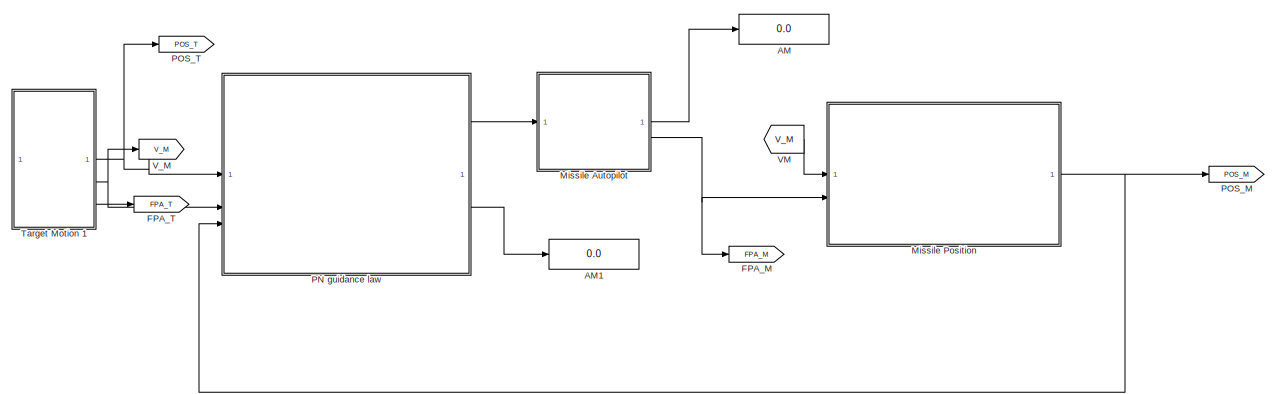
[diagram: root canvas - part 1/2, full width, top band]
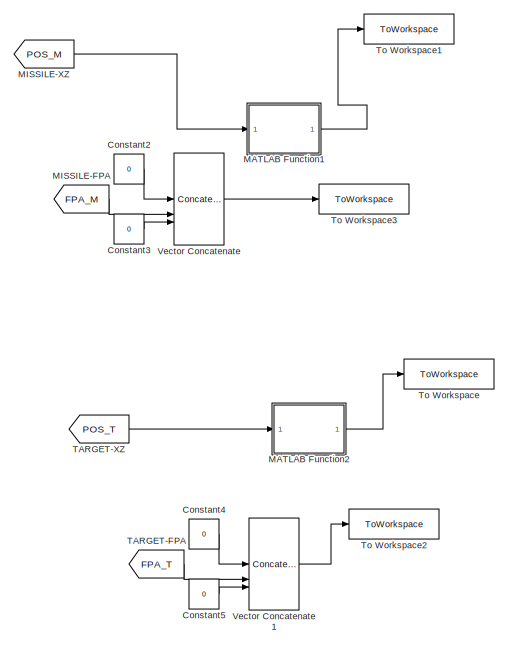
[diagram: root canvas - part 2/2, bottom center region]
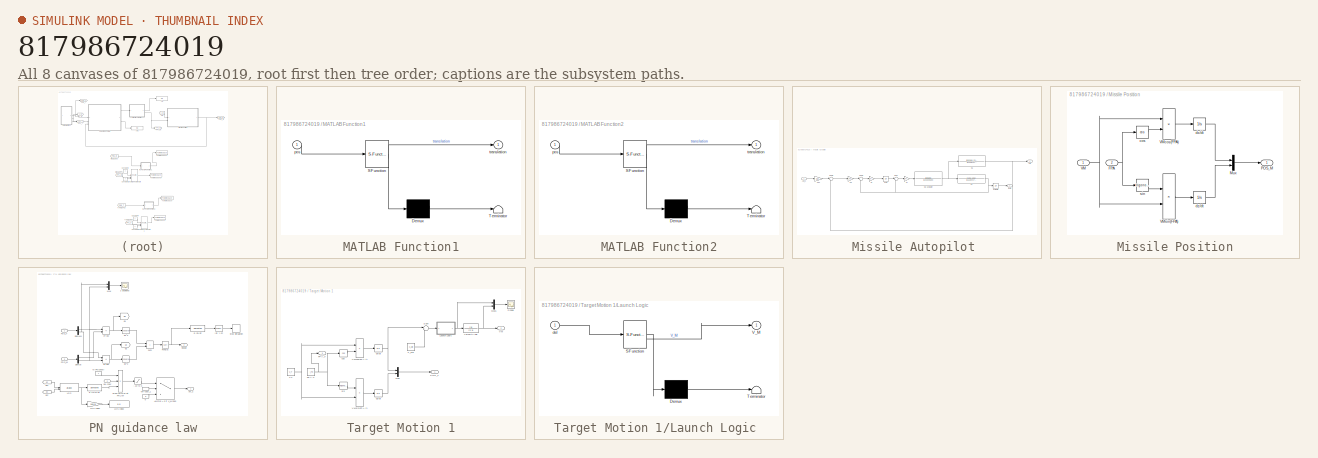
[diagram: thumbnail index - all 8 canvases of the model, root first then tree order]
MODEL slx_817986724019
KIND model
CONFIG AbsTol = auto
CONFIG EnableMultiTasking = off
CONFIG FixedStep = 0.01
CONFIG MaxStep = auto
CONFIG MinStep = auto
CONFIG PreLoadFcn = [aircraft, state] = astDehavillandBeaver();\nthrustX = getCoefficient(aircraft,"CX","Propeller",Component="Propeller");
CONFIG RelTol = 1e-5
CONFIG SampleTimeConstraint = Unconstrained
CONFIG SolverName = ode4
CONFIG StartTime = 0.0
CONFIG StopTime = 40
WORKSPACE source: MATLAB code (in-file) + mxarray member
WORKSPACE code: initialize6DOFSkyHogg;
WORKSPACE inputs0: object (value not decoded)
WORKSPACE states: object (value not decoded)
WORKSPACE states0: object (value not decoded)
BLOCK [Display] AM
  Decimation = 1
  Format = bank
BLOCK [Display] AM1
  Decimation = 1
  Format = bank
BLOCK [Constant] Constant2
  Value = 0
BLOCK [Constant] Constant3
  Value = 0
BLOCK [Constant] Constant4
  Value = 0
BLOCK [Constant] Constant5
  Value = 0
BLOCK [Goto] FPA_M
  GotoTag = FPA_M
BLOCK [Goto] FPA_T
  GotoTag = FPA_T
BLOCK [SubSystem] MATLAB Function1
  ErrorFcn = Stateflow.Translate.translate
  PermitHierarchicalResolution = ExplicitOnly
  SFBlockType = MATLAB Function
  TreatAsAtomicUnit = on
BLOCK [Demux] MATLAB Function1/ Demux 
  Outputs = 1
BLOCK [S-Function] MATLAB Function1/ SFunction 
  EnableBusSupport = off
  FunctionName = sf_sfun
  PortCounts = [1 2]
  SFcnIsStateOwnerBlock = off
  SFunctionDeploymentMode = off
  Tag = Stateflow S-Function 3
BLOCK [Terminator] MATLAB Function1/ Terminator 
BLOCK [Inport] MATLAB Function1/pos
BLOCK [Outport] MATLAB Function1/translation
BLOCK [SubSystem] MATLAB Function2
  ErrorFcn = Stateflow.Translate.translate
  PermitHierarchicalResolution = ExplicitOnly
  SFBlockType = MATLAB Function
  TreatAsAtomicUnit = on
BLOCK [Demux] MATLAB Function2/ Demux 
  Outputs = 1
BLOCK [S-Function] MATLAB Function2/ SFunction 
  EnableBusSupport = off
  FunctionName = sf_sfun
  PortCounts = [1 2]
  SFcnIsStateOwnerBlock = off
  SFunctionDeploymentMode = off
  Tag = Stateflow S-Function 2
BLOCK [Terminator] MATLAB Function2/ Terminator 
BLOCK [Inport] MATLAB Function2/pos
BLOCK [Outport] MATLAB Function2/translation
BLOCK [From] MISSILE-FPA
  GotoTag = FPA_M
BLOCK [From] MISSILE-XZ
  GotoTag = POS_M
BLOCK [SubSystem] Missile Autopilot 
BLOCK [Outport] Missile Autopilot /AM
BLOCK [Inport] Missile Autopilot /AM_c
BLOCK [TransferFcn] Missile Autopilot /G1
  Denominator = [1 1.12 87.176]
  Numerator = [0.2038 0 -239.76]
BLOCK [TransferFcn] Missile Autopilot /G2
  Denominator = [1 1.12 87.176]
  Numerator = [-131 -131]
BLOCK [TransferFcn] Missile Autopilot /G3-actuator 
  Denominator = [1 210 22500]
  Numerator = [22500]
BLOCK [Integrator] Missile Autopilot /K1//S
BLOCK [Gain] Missile Autopilot /Ka
  Gain = Ka
BLOCK [Gain] Missile Autopilot /Ka1
  Gain = Kdc
BLOCK [Gain] Missile Autopilot /Ki
  Gain = Ki
BLOCK [Gain] Missile Autopilot /Kr
  Gain = Kr
BLOCK [Sum] Missile Autopilot /Sum
  Inputs = |+-
BLOCK [Sum] Missile Autopilot /Sum1
  Inputs = |+-
BLOCK [Sum] Missile Autopilot /Sum2
  Inputs = |+-
BLOCK [Integrator] Missile Autopilot /p' >theta
  InitialCondition = l_M0
BLOCK [Outport] Missile Autopilot /theta
  Port = 2
BLOCK [SubSystem] Missile Position
BLOCK [Inport] Missile Position/FPA
  Port = 2
BLOCK [Mux] Missile Position/Mux
  DisplayOption = bar
  Inputs = 2
BLOCK [Outport] Missile Position/POS_M
BLOCK [Inport] Missile Position/VM
BLOCK [Product] Missile Position/VMcos(FPA)
BLOCK [Product] Missile Position/VMsin(FPA)
BLOCK [Trigonometry] Missile Position/cos
  Operator = cos
BLOCK [Integrator] Missile Position/dx//dt
  InitialCondition = X_M0
BLOCK [Integrator] Missile Position/dz//dt
  InitialCondition = Z_M0
BLOCK [Trigonometry] Missile Position/sin
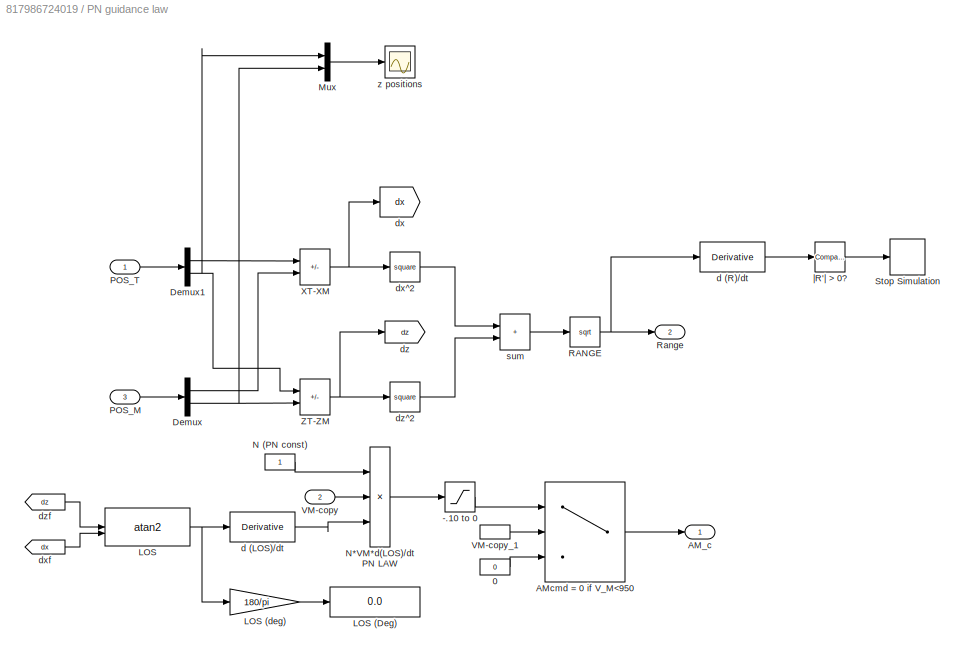
BLOCK [SubSystem] PN guidance law
BLOCK [Saturate] PN guidance law/-.10 to 0
  LowerLimit = -0.1
  UpperLimit = 0
BLOCK [Constant] PN guidance law/0
  Value = 0
BLOCK [Outport] PN guidance law/AM_c
BLOCK [Switch] PN guidance law/AMcmd = 0 if V_M<950 
  Criteria = u2 > Threshold
  InputSameDT = off
  SaturateOnIntegerOverflow = off
  Threshold = 950
BLOCK [Demux] PN guidance law/Demux
  Outputs = 2
BLOCK [Demux] PN guidance law/Demux1
  Outputs = 2
BLOCK [Trigonometry] PN guidance law/LOS
  Operator = atan2
BLOCK [Display] PN guidance law/LOS (Deg)
  Decimation = 1
BLOCK [Gain] PN guidance law/LOS (deg)
  Gain = 180/pi
BLOCK [Mux] PN guidance law/Mux
  DisplayOption = bar
  Inputs = 2
BLOCK [Constant] PN guidance law/N (PN const)
BLOCK [Product] PN guidance law/N*VM*d(LOS)//dt PN LAW
  Inputs = 3
BLOCK [Inport] PN guidance law/POS_M
  Port = 3
BLOCK [Inport] PN guidance law/POS_T
BLOCK [Sqrt] PN guidance law/RANGE 
BLOCK [Outport] PN guidance law/Range
  Port = 2
BLOCK [Stop] PN guidance law/Stop Simulation
BLOCK [Inport] PN guidance law/VM-copy
  Port = 2
BLOCK [InportShadow] PN guidance law/VM-copy_1
  Port = 2
BLOCK [Sum] PN guidance law/XT-XM
  IconShape = rectangular
  Inputs = +-
BLOCK [Sum] PN guidance law/ZT-ZM
  IconShape = rectangular
  Inputs = +-
BLOCK [Derivative] PN guidance law/d (LOS)//dt
BLOCK [Derivative] PN guidance law/d (R)//dt
BLOCK [Goto] PN guidance law/dx
  GotoTag = dx
BLOCK [Math] PN guidance law/dx^2
  Operator = square
BLOCK [From] PN guidance law/dxf
  GotoTag = dx
BLOCK [Goto] PN guidance law/dz
  GotoTag = dz
BLOCK [Math] PN guidance law/dz^2
  Operator = square
BLOCK [From] PN guidance law/dzf
  GotoTag = dz
BLOCK [Sum] PN guidance law/sum
  IconShape = rectangular
BLOCK [Scope] PN guidance law/z positions 
  ActiveDisplayYMaximum = 20000
  ActiveDisplayYMinimum = 0
  DataLoggingVariableName = ScopeData1
  Floating = off
  GraphicalSettings = {"Style":{"BackgroundColor":[0.12941176470588237,0.12941176470588237,0.12941176470588237],"AxesColor":[0.07058823529411765,0.07058823529411765,0.07058823529411765],"LabelsColor":[0.8509803921568627,0.8509803921568627,0.8509803921568627],"PreserveColors":false,"Visible":[true,true],"LineStyle":["-","-"],"LineWidth":[1.5,1.5],"BarWidth":[0.9,0.9],"LineColor":["auto","auto"],"LineFaceAlpha":[1,1],"Li...<+2069ch>
  MultipleDisplayCache = [{"MaxYLimMag":10,"MaxYLimReal":20000,"MinYLimMag":0,"MinYLimReal":0,"PlotAsMagnitudePhase":false,"ShowGrid":true,"ShowLegend":false,"Title":"%<SignalLabel>","YLabel":""}]
  NumInputPorts = 1
  ScopeFrameLocation = window
  WasSavedAsWebScope = on
  WindowPosition = [744.000000,430.000000,560.000000,420.000000,]
BLOCK [Reference] PN guidance law/|R'| > 0?  REF=simulink/Logic and Bit
Operations/Compare
To Zero
  SourceBlock = simulink/Logic and Bit\nOperations/Compare\nTo Zero
  SourceType = Compare To Zero
BLOCK [Goto] POS_M
  GotoTag = POS_M
BLOCK [Goto] POS_T
  GotoTag = POS_T
BLOCK [From] TARGET-FPA
  GotoTag = FPA_T
BLOCK [From] TARGET-XZ
  GotoTag = POS_T
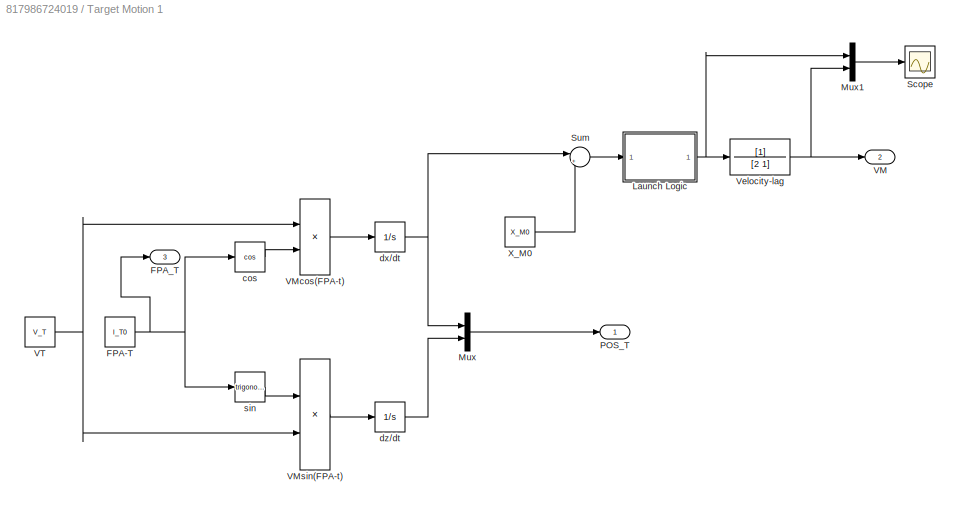
BLOCK [SubSystem] Target Motion 1
BLOCK [Constant] Target Motion 1/FPA-T
  Value = l_T0
BLOCK [Outport] Target Motion 1/FPA_T
  Port = 3
BLOCK [SubSystem] Target Motion 1/Launch Logic 
  ErrorFcn = Stateflow.Translate.translate
  PermitHierarchicalResolution = ExplicitOnly
  SFBlockType = MATLAB Function
  TreatAsAtomicUnit = on
BLOCK [Demux] Target Motion 1/Launch Logic / Demux 
  Outputs = 1
BLOCK [S-Function] Target Motion 1/Launch Logic / SFunction 
  EnableBusSupport = off
  FunctionName = sf_sfun
  PortCounts = [1 2]
  SFcnIsStateOwnerBlock = off
  SFunctionDeploymentMode = off
  Tag = Stateflow S-Function 1
BLOCK [Terminator] Target Motion 1/Launch Logic / Terminator 
BLOCK [Outport] Target Motion 1/Launch Logic /V_M
BLOCK [Inport] Target Motion 1/Launch Logic /del
BLOCK [Mux] Target Motion 1/Mux
  DisplayOption = bar
  Inputs = 2
BLOCK [Mux] Target Motion 1/Mux1
  DisplayOption = bar
  Inputs = 2
BLOCK [Outport] Target Motion 1/POS_T
BLOCK [Scope] Target Motion 1/Scope
  Floating = off
  GraphicalSettings = {"Style":{"BackgroundColor":[0.12941176470588237,0.12941176470588237,0.12941176470588237],"AxesColor":[0.07058823529411765,0.07058823529411765,0.07058823529411765],"LabelsColor":[0.8509803921568627,0.8509803921568627,0.8509803921568627],"PreserveColors":false,"Visible":[true,true,true,true,true,true,true],"LineStyle":["-","-","-","-","-","-","-"],"LineWidth":[1.5,1.5,1.5,1.5,1.5,1.5,1.5],"BarWidth...<+2497ch>
  NumInputPorts = 1
  ScopeFrameLocation = window
  WasSavedAsWebScope = on
BLOCK [Sum] Target Motion 1/Sum
  Inputs = |+-
BLOCK [Outport] Target Motion 1/VM
  Port = 2
BLOCK [Product] Target Motion 1/VMcos(FPA-t)
BLOCK [Product] Target Motion 1/VMsin(FPA-t)
BLOCK [Constant] Target Motion 1/VT
  Value = V_T
BLOCK [TransferFcn] Target Motion 1/Velocity-lag
  Denominator = [2 1]
BLOCK [Constant] Target Motion 1/X_M0
  Value = X_M0
BLOCK [Trigonometry] Target Motion 1/cos
  Operator = cos
BLOCK [Integrator] Target Motion 1/dx//dt
  InitialCondition = X_T0
BLOCK [Integrator] Target Motion 1/dz//dt
  InitialCondition = Z_T0
BLOCK [Trigonometry] Target Motion 1/sin
BLOCK [ToWorkspace] To Workspace
  FixptAsFi = on
  MaxDataPoints = inf
  SampleTime = .01
  Save2DSignal = 2-D array (concatenate along first dimension)
  VariableName = target_pos
BLOCK [ToWorkspace] To Workspace1
  FixptAsFi = on
  MaxDataPoints = inf
  SampleTime = .01
  Save2DSignal = 2-D array (concatenate along first dimension)
  VariableName = missile_pos
BLOCK [ToWorkspace] To Workspace2
  FixptAsFi = on
  MaxDataPoints = inf
  SampleTime = .01
  Save2DSignal = 2-D array (concatenate along first dimension)
  VariableName = target_rot
BLOCK [ToWorkspace] To Workspace3
  FixptAsFi = on
  MaxDataPoints = inf
  SampleTime = .01
  Save2DSignal = 2-D array (concatenate along first dimension)
  VariableName = missile_rot
BLOCK [From] VM
  GotoTag = V_M
BLOCK [Goto] V_M
  GotoTag = V_M
BLOCK [Concatenate] Vector Concatenate
  ConcatenateDimension = 2
  Mode = Multidimensional array
  NumInputs = 3
BLOCK [Concatenate] Vector Concatenate1
  ConcatenateDimension = 2
  Mode = Multidimensional array
  NumInputs = 3
LINE Constant2:1 -> Vector Concatenate:1
LINE Constant3:1 -> Vector Concatenate:3
LINE Constant4:1 -> Vector Concatenate1:1
LINE Constant5:1 -> Vector Concatenate1:3
LINE MATLAB Function1:1 -> To Workspace1:1
LINE MATLAB Function2:1 -> To Workspace:1
LINE MISSILE-FPA:1 -> Vector Concatenate:2
LINE MISSILE-XZ:1 -> MATLAB Function1:1
LINE Missile Autopilot /AM_c:1 -> Missile Autopilot /Ka1:1
NET Missile Autopilot /G1:1 -> Missile Autopilot /AM:1, Missile Autopilot /Sum2:2
NET Missile Autopilot /G2:1 -> Missile Autopilot /Sum1:2, Missile Autopilot /Sum:2, Missile Autopilot /p' >theta:1
NET Missile Autopilot /G3-actuator :1 -> Missile Autopilot /G1:1, Missile Autopilot /G2:1
LINE Missile Autopilot /K1//S:1 -> Missile Autopilot /Sum:1
LINE Missile Autopilot /Ka1:1 -> Missile Autopilot /Sum2:1
LINE Missile Autopilot /Ka:1 -> Missile Autopilot /Sum1:1
LINE Missile Autopilot /Ki:1 -> Missile Autopilot /K1//S:1
LINE Missile Autopilot /Kr:1 -> Missile Autopilot /G3-actuator :1
LINE Missile Autopilot /Sum1:1 -> Missile Autopilot /Ki:1
LINE Missile Autopilot /Sum2:1 -> Missile Autopilot /Ka:1
LINE Missile Autopilot /Sum:1 -> Missile Autopilot /Kr:1
LINE Missile Autopilot /p' >theta:1 -> Missile Autopilot /theta:1
LINE Missile Autopilot :1 -> AM:1
NET Missile Autopilot :2 -> FPA_M:1, Missile Position:2
NET Missile Position/FPA:1 -> Missile Position/cos:1, Missile Position/sin:1
LINE Missile Position/Mux:1 -> Missile Position/POS_M:1
NET Missile Position/VM:1 -> Missile Position/VMcos(FPA):1, Missile Position/VMsin(FPA):2
LINE Missile Position/VMcos(FPA):1 -> Missile Position/dx//dt:1
LINE Missile Position/VMsin(FPA):1 -> Missile Position/dz//dt:1
LINE Missile Position/cos:1 -> Missile Position/VMcos(FPA):2
LINE Missile Position/dx//dt:1 -> Missile Position/Mux:1
LINE Missile Position/dz//dt:1 -> Missile Position/Mux:2
LINE Missile Position/sin:1 -> Missile Position/VMsin(FPA):1
NET Missile Position:1 -> PN guidance law:3, POS_M:1
LINE PN guidance law/-.10 to 0:1 -> PN guidance law/AMcmd = 0 if V_M<950 :1
LINE PN guidance law/0:1 -> PN guidance law/AMcmd = 0 if V_M<950 :3
LINE PN guidance law/AMcmd = 0 if V_M<950 :1 -> PN guidance law/AM_c:1
LINE PN guidance law/Demux1:1 -> PN guidance law/XT-XM:1
NET PN guidance law/Demux1:2 -> PN guidance law/Mux:1, PN guidance law/ZT-ZM:1
LINE PN guidance law/Demux:1 -> PN guidance law/XT-XM:2
NET PN guidance law/Demux:2 -> PN guidance law/Mux:2, PN guidance law/ZT-ZM:2
LINE PN guidance law/LOS (deg):1 -> PN guidance law/LOS (Deg):1
NET PN guidance law/LOS:1 -> PN guidance law/LOS (deg):1, PN guidance law/d (LOS)//dt:1
LINE PN guidance law/Mux:1 -> PN guidance law/z positions :1
LINE PN guidance law/N (PN const):1 -> PN guidance law/N*VM*d(LOS)//dt PN LAW:1
LINE PN guidance law/N*VM*d(LOS)//dt PN LAW:1 -> PN guidance law/-.10 to 0:1
LINE PN guidance law/POS_M:1 -> PN guidance law/Demux:1
LINE PN guidance law/POS_T:1 -> PN guidance law/Demux1:1
NET PN guidance law/RANGE :1 -> PN guidance law/Range:1, PN guidance law/d (R)//dt:1
LINE PN guidance law/VM-copy:1 -> PN guidance law/N*VM*d(LOS)//dt PN LAW:2
LINE PN guidance law/VM-copy_1:1 -> PN guidance law/AMcmd = 0 if V_M<950 :2
NET PN guidance law/XT-XM:1 -> PN guidance law/dx:1, PN guidance law/dx^2:1
NET PN guidance law/ZT-ZM:1 -> PN guidance law/dz:1, PN guidance law/dz^2:1
LINE PN guidance law/d (LOS)//dt:1 -> PN guidance law/N*VM*d(LOS)//dt PN LAW:3
LINE PN guidance law/d (R)//dt:1 -> PN guidance law/|R'| > 0?:1
LINE PN guidance law/dx^2:1 -> PN guidance law/sum:1
LINE PN guidance law/dxf:1 -> PN guidance law/LOS:2
LINE PN guidance law/dz^2:1 -> PN guidance law/sum:2
LINE PN guidance law/dzf:1 -> PN guidance law/LOS:1
LINE PN guidance law/sum:1 -> PN guidance law/RANGE :1
LINE PN guidance law/|R'| > 0?:1 -> PN guidance law/Stop Simulation:1
LINE PN guidance law:1 -> Missile Autopilot :1
LINE PN guidance law:2 -> AM1:1
LINE TARGET-FPA:1 -> Vector Concatenate1:2
LINE TARGET-XZ:1 -> MATLAB Function2:1
NET Target Motion 1/FPA-T:1 -> Target Motion 1/FPA_T:1, Target Motion 1/cos:1, Target Motion 1/sin:1
NET Target Motion 1/Launch Logic :1 -> Target Motion 1/Mux1:1, Target Motion 1/Velocity-lag:1
LINE Target Motion 1/Mux1:1 -> Target Motion 1/Scope:1
LINE Target Motion 1/Mux:1 -> Target Motion 1/POS_T:1
LINE Target Motion 1/Sum:1 -> Target Motion 1/Launch Logic :1
LINE Target Motion 1/VMcos(FPA-t):1 -> Target Motion 1/dx//dt:1
LINE Target Motion 1/VMsin(FPA-t):1 -> Target Motion 1/dz//dt:1
NET Target Motion 1/VT:1 -> Target Motion 1/VMcos(FPA-t):1, Target Motion 1/VMsin(FPA-t):2
NET Target Motion 1/Velocity-lag:1 -> Target Motion 1/Mux1:2, Target Motion 1/VM:1
LINE Target Motion 1/X_M0:1 -> Target Motion 1/Sum:2
LINE Target Motion 1/cos:1 -> Target Motion 1/VMcos(FPA-t):2
NET Target Motion 1/dx//dt:1 -> Target Motion 1/Mux:1, Target Motion 1/Sum:1
LINE Target Motion 1/dz//dt:1 -> Target Motion 1/Mux:2
LINE Target Motion 1/sin:1 -> Target Motion 1/VMsin(FPA-t):1
NET Target Motion 1:1 -> PN guidance law:1, POS_T:1
NET Target Motion 1:2 -> PN guidance law:2, V_M:1
LINE Target Motion 1:3 -> FPA_T:1
LINE VM:1 -> Missile Position:1
LINE Vector Concatenate1:1 -> To Workspace2:1
LINE Vector Concatenate:1 -> To Workspace3:1
note: NET lines group one-source signal fan-out (src -> all destinations, sorted); 1:1 wires keep LINE
CHART MATLAB Function2 states=1 transitions=1
  STATE_LABEL 'eML_blk_kernel()'
  STATE_LABEL 'SCRIPT:\nfunction translation = fcn(pos)\n    % pos is [x, z] (1x2 vector)\n    % Output: [x, 0, z] (1x3 vector)\n    \n    translation = [pos(1), 0, pos(2)];\nend'
CHART MATLAB Function1 states=1 transitions=1
  STATE_LABEL 'eML_blk_kernel()'
  STATE_LABEL 'SCRIPT:\nfunction translation = fcn(pos)\n    % pos is [x, z] (1x2 vector)\n    % Output: [x, 0, z] (1x3 vector)\n    \n    translation = [pos(1), 0, pos(2)];\nend'
CHART Target Motion 1/Launch Logic  states=1 transitions=1
  STATE_LABEL 'eML_blk_kernel()'
  STATE_LABEL 'SCRIPT:\nfunction V_M = fcn(del)\n\n\npersistent f\npersistent Vel\n\nif isempty(f)\n    f = 0;\nend \nif isempty(Vel)\n    Vel=0;\nend \n\nif f == 0 && del > -200\n    f = 1;\n    Vel = 1021; %missile speed\nend\n\n\n\nV_M = Vel;\n'
CHART  states=0 transitions=0
CHART  states=0 transitions=0
CHART  states=0 transitions=0
